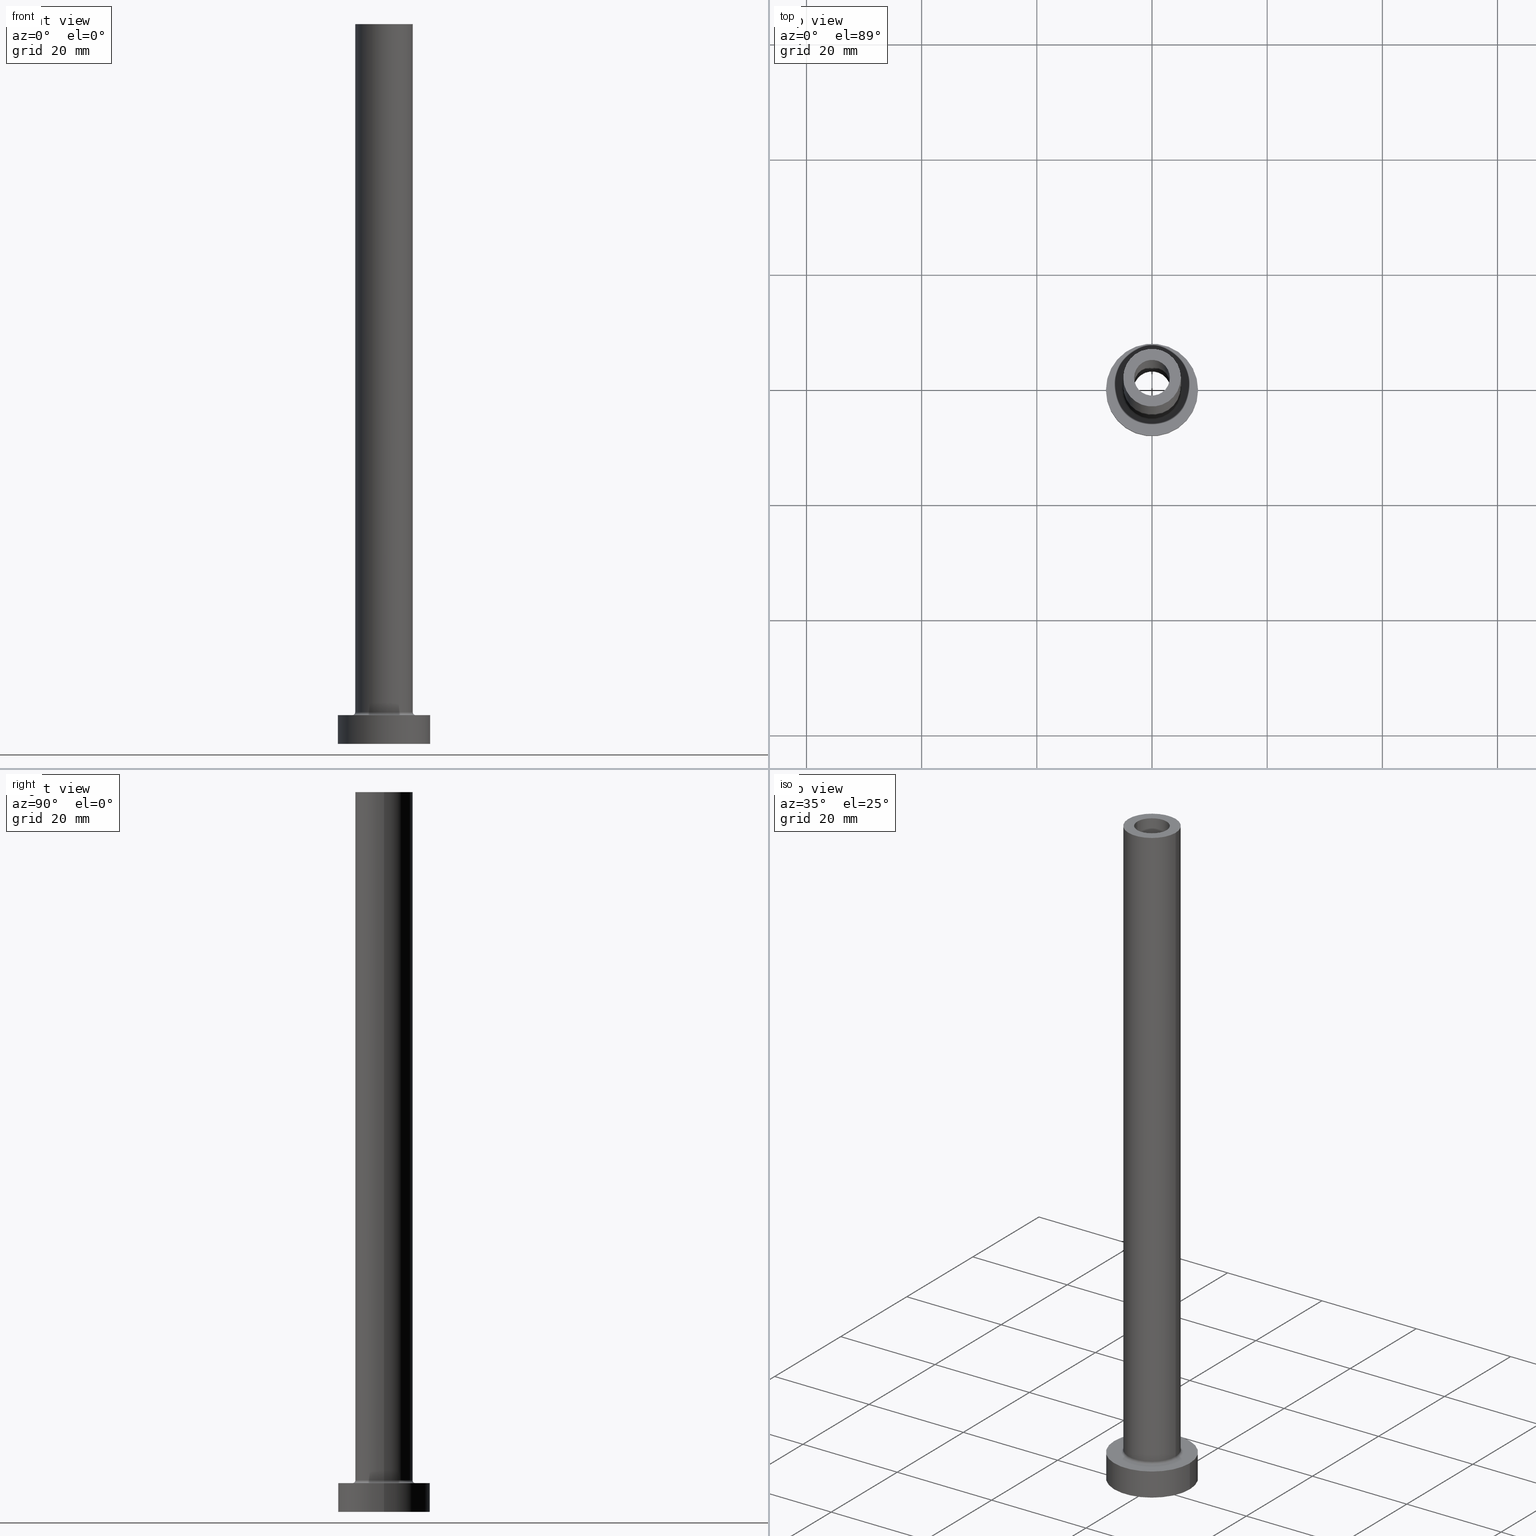
[diagram: canonical four-view strip — front | top / right | iso, engineering-drawing reading convention]
A machine part, canonical four-view strip (front | top / right | iso — engineering-drawing reading convention). The complete STEP part file that produces these views, byte-faithful:
ISO-10303-21;
HEADER;
FILE_DESCRIPTION (( 'STEP AP203' ),
    '1' );
FILE_NAME ('5564.STEP',
    '2023-02-13T09:12:51',
    ( '' ),
    ( '' ),
    'SwSTEP 2.0',
    'SolidWorks 2019',
    '' );
FILE_SCHEMA (( 'CONFIG_CONTROL_DESIGN' ));
ENDSEC;

DATA;
#1 = CARTESIAN_POINT ( 'NONE',  ( -8.000000000000000000, 0.000000000000000000, 0.000000000000000000 ) ) ;
#2 = VERTEX_POINT ( 'NONE', #134 ) ;
#3 = AXIS2_PLACEMENT_3D ( 'NONE', #340, #66, #133 ) ;
#4 = ADVANCED_FACE ( 'NONE', ( #203, #34 ), #162, .T. ) ;
#5 = EDGE_CURVE ( 'NONE', #293, #67, #461, .T. ) ;
#6 = COORDINATED_UNIVERSAL_TIME_OFFSET ( 1, 0, .AHEAD. ) ;
#7 = CARTESIAN_POINT ( 'NONE',  ( -5.000000000000000000, 0.000000000000000000, 125.0000000000000000 ) ) ;
#8 = APPROVAL_STATUS ( 'not_yet_approved' ) ;
#9 = DIRECTION ( 'NONE',  ( 1.000000000000000000, 0.000000000000000000, 0.000000000000000000 ) ) ;
#10 = ADVANCED_FACE ( 'NONE', ( #391 ), #78, .T. ) ;
#11 = DIRECTION ( 'NONE',  ( 0.000000000000000000, 0.000000000000000000, -1.000000000000000000 ) ) ;
#12 = AXIS2_PLACEMENT_3D ( 'NONE', #343, #372, #338 ) ;
#13 = APPROVAL_DATE_TIME ( #399, #137 ) ;
#14 = DIRECTION ( 'NONE',  ( 1.000000000000000000, 0.000000000000000000, 0.000000000000000000 ) ) ;
#15 = FACE_BOUND ( 'NONE', #331, .T. ) ;
#16 = ORIENTED_EDGE ( 'NONE', *, *, #246, .F. ) ;
#17 = AXIS2_PLACEMENT_3D ( 'NONE', #252, #248, #52 ) ;
#18 = DIRECTION ( 'NONE',  ( 0.000000000000000000, 0.000000000000000000, 1.000000000000000000 ) ) ;
#19 = ORIENTED_EDGE ( 'NONE', *, *, #253, .F. ) ;
#20 = APPROVAL ( #182, 'NEUR�EN�' ) ;
#21 = VECTOR ( 'NONE', #313, 1000.000000000000000 ) ;
#22 = APPLICATION_CONTEXT ( 'configuration controlled 3d designs of mechanical parts and assemblies' ) ;
#23 = CARTESIAN_POINT ( 'NONE',  ( 0.000000000000000000, 0.000000000000000000, 0.000000000000000000 ) ) ;
#24 = VERTEX_POINT ( 'NONE', #267 ) ;
#25 = CARTESIAN_POINT ( 'NONE',  ( 5.000000000000000000, 6.123233995736766282E-16, 5.500000000000005329 ) ) ;
#26 = VERTEX_POINT ( 'NONE', #98 ) ;
#27 = DIRECTION ( 'NONE',  ( 0.000000000000000000, 0.000000000000000000, 1.000000000000000000 ) ) ;
#28 = CC_DESIGN_PERSON_AND_ORGANIZATION_ASSIGNMENT ( #320, #291, ( #363 ) ) ;
#29 = EDGE_LOOP ( 'NONE', ( #368, #328, #224, #145 ) ) ;
#30 = AXIS2_PLACEMENT_3D ( 'NONE', #192, #335, #90 ) ;
#31 = LINE ( 'NONE', #166, #104 ) ;
#32 = EDGE_LOOP ( 'NONE', ( #255, #211, #382, #112 ) ) ;
#33 = DIRECTION ( 'NONE',  ( 0.000000000000000000, 0.000000000000000000, -1.000000000000000000 ) ) ;
#34 = FACE_OUTER_BOUND ( 'NONE', #405, .T. ) ;
#35 = VECTOR ( 'NONE', #11, 1000.000000000000000 ) ;
#36 = AXIS2_PLACEMENT_3D ( 'NONE', #289, #432, #14 ) ;
#37 = AXIS2_PLACEMENT_3D ( 'NONE', #409, #128, #58 ) ;
#38 = DIRECTION ( 'NONE',  ( 0.000000000000000000, 0.000000000000000000, 1.000000000000000000 ) ) ;
#39 = CARTESIAN_POINT ( 'NONE',  ( -5.000000000000000000, 0.000000000000000000, 125.0000000000000000 ) ) ;
#40 = PRODUCT_RELATED_PRODUCT_CATEGORY ( 'detail', '', ( #179 ) ) ;
#41 = ORIENTED_EDGE ( 'NONE', *, *, #365, .F. ) ;
#42 = ADVANCED_FACE ( 'NONE', ( #233 ), #216, .F. ) ;
#43 = CARTESIAN_POINT ( 'NONE',  ( 3.250000000000000444, 3.980102097228898231E-16, 89.19238815542512100 ) ) ;
#44 = CC_DESIGN_APPROVAL ( #20, ( #237 ) ) ;
#45 = CARTESIAN_POINT ( 'NONE',  ( 0.000000000000000000, 0.000000000000000000, 5.500000000000005329 ) ) ;
#46 = PERSON_AND_ORGANIZATION_ROLE ( 'design_supplier' ) ;
#47 = DIRECTION ( 'NONE',  ( 0.000000000000000000, 0.000000000000000000, 1.000000000000000000 ) ) ;
#48 = APPROVAL_ROLE ( '' ) ;
#49 = CARTESIAN_POINT ( 'NONE',  ( 5.500000000000000000, 0.000000000000000000, 5.000000000000002665 ) ) ;
#50 = CIRCLE ( 'NONE', #351, 3.250000000000000444 ) ;
#51 = ORIENTED_EDGE ( 'NONE', *, *, #353, .F. ) ;
#52 = DIRECTION ( 'NONE',  ( -1.000000000000000000, 1.224646799147351482E-16, 0.000000000000000000 ) ) ;
#53 = ORIENTED_EDGE ( 'NONE', *, *, #418, .F. ) ;
#54 = CARTESIAN_POINT ( 'NONE',  ( -3.250000000000000444, 0.000000000000000000, 0.000000000000000000 ) ) ;
#55 = EDGE_CURVE ( 'NONE', #158, #2, #355, .T. ) ;
#56 = ORIENTED_EDGE ( 'NONE', *, *, #277, .F. ) ;
#57 = AXIS2_PLACEMENT_3D ( 'NONE', #394, #178, #366 ) ;
#58 = DIRECTION ( 'NONE',  ( 1.000000000000000000, 0.000000000000000000, 0.000000000000000000 ) ) ;
#59 = AXIS2_PLACEMENT_3D ( 'NONE', #222, #440, #150 ) ;
#60 = CIRCLE ( 'NONE', #30, 3.250000000000000444 ) ;
#61 = LINE ( 'NONE', #190, #149 ) ;
#62 = EDGE_LOOP ( 'NONE', ( #317, #127, #305, #196 ) ) ;
#63 = EDGE_CURVE ( 'NONE', #231, #84, #272, .T. ) ;
#64 = FACE_OUTER_BOUND ( 'NONE', #356, .T. ) ;
#65 = ORIENTED_EDGE ( 'NONE', *, *, #55, .T. ) ;
#66 = DIRECTION ( 'NONE',  ( 0.000000000000000000, 0.000000000000000000, 1.000000000000000000 ) ) ;
#67 = VERTEX_POINT ( 'NONE', #49 ) ;
#68 = VECTOR ( 'NONE', #197, 1000.000000000000000 ) ;
#69 = DIRECTION ( 'NONE',  ( 1.000000000000000000, 0.000000000000000000, 0.000000000000000000 ) ) ;
#70 = EDGE_LOOP ( 'NONE', ( #345, #103 ) ) ;
#71 = DIRECTION ( 'NONE',  ( 0.000000000000000000, 0.000000000000000000, 1.000000000000000000 ) ) ;
#72 = ADVANCED_FACE ( 'NONE', ( #214 ), #83, .T. ) ;
#73 = ORIENTED_EDGE ( 'NONE', *, *, #93, .T. ) ;
#74 = CIRCLE ( 'NONE', #352, 3.100000000000000089 ) ;
#75 = DIRECTION ( 'NONE',  ( 1.000000000000000000, 0.000000000000000000, -0.000000000000000000 ) ) ;
#76 = ADVANCED_FACE ( 'NONE', ( #292 ), #88, .F. ) ;
#77 = APPROVAL_STATUS ( 'not_yet_approved' ) ;
#78 = CYLINDRICAL_SURFACE ( 'NONE', #325, 8.000000000000000000 ) ;
#79 = CARTESIAN_POINT ( 'NONE',  ( -3.100000000000000089, 0.000000000000000000, 80.00000000000000000 ) ) ;
#80 = AXIS2_PLACEMENT_3D ( 'NONE', #240, #38, #243 ) ;
#81 = PERSON_AND_ORGANIZATION ( #444, #396 ) ;
#82 = DIRECTION ( 'NONE',  ( -1.000000000000000000, 0.000000000000000000, 0.000000000000000000 ) ) ;
#83 = CYLINDRICAL_SURFACE ( 'NONE', #57, 8.000000000000000000 ) ;
#84 = VERTEX_POINT ( 'NONE', #431 ) ;
#85 = DIRECTION ( 'NONE',  ( 1.000000000000000000, 0.000000000000000000, 0.000000000000000000 ) ) ;
#86 = EDGE_LOOP ( 'NONE', ( #176, #423 ) ) ;
#87 = ADVANCED_FACE ( 'NONE', ( #398 ), #123, .T. ) ;
#88 = CYLINDRICAL_SURFACE ( 'NONE', #114, 3.100000000000000089 ) ;
#89 = EDGE_LOOP ( 'NONE', ( #446, #16, #416, #342 ) ) ;
#90 = DIRECTION ( 'NONE',  ( 1.000000000000000000, 0.000000000000000000, 0.000000000000000000 ) ) ;
#91 = VERTEX_POINT ( 'NONE', #79 ) ;
#92 = CYLINDRICAL_SURFACE ( 'NONE', #296, 3.100000000000000089 ) ;
#93 = EDGE_CURVE ( 'NONE', #231, #24, #225, .T. ) ;
#94 = CIRCLE ( 'NONE', #207, 8.000000000000000000 ) ;
#95 = ORIENTED_EDGE ( 'NONE', *, *, #301, .F. ) ;
#96 = AXIS2_PLACEMENT_3D ( 'NONE', #101, #18, #408 ) ;
#97 = DIRECTION ( 'NONE',  ( 1.000000000000000000, 0.000000000000000000, 0.000000000000000000 ) ) ;
#98 = CARTESIAN_POINT ( 'NONE',  ( 3.100000000000000089, 3.796405077356793932E-16, 125.0000000000000000 ) ) ;
#99 = CARTESIAN_POINT ( 'NONE',  ( 0.000000000000000000, 0.000000000000000000, 80.00000000000000000 ) ) ;
#100 = CARTESIAN_POINT ( 'NONE',  ( 5.500000000000000000, 0.000000000000000000, 5.500000000000005329 ) ) ;
#101 = CARTESIAN_POINT ( 'NONE',  ( 0.000000000000000000, 0.000000000000000000, 80.00000000000000000 ) ) ;
#102 = AXIS2_PLACEMENT_3D ( 'NONE', #361, #120, #117 ) ;
#103 = ORIENTED_EDGE ( 'NONE', *, *, #337, .F. ) ;
#104 = VECTOR ( 'NONE', #276, 1000.000000000000000 ) ;
#105 = LINE ( 'NONE', #39, #406 ) ;
#106 = EDGE_LOOP ( 'NONE', ( #125, #362, #438, #375 ) ) ;
#107 = CARTESIAN_POINT ( 'NONE',  ( 3.100000000000000089, 3.796405077356793932E-16, 80.00000000000000000 ) ) ;
#108 = FACE_BOUND ( 'NONE', #136, .T. ) ;
#109 = AXIS2_PLACEMENT_3D ( 'NONE', #170, #269, #309 ) ;
#110 = CC_DESIGN_PERSON_AND_ORGANIZATION_ASSIGNMENT ( #180, #326, ( #227 ) ) ;
#111 = SECURITY_CLASSIFICATION_LEVEL ( 'unclassified' ) ;
#112 = ORIENTED_EDGE ( 'NONE', *, *, #379, .F. ) ;
#113 = CARTESIAN_POINT ( 'NONE',  ( 5.000000000000000000, 6.123233995736766282E-16, 125.0000000000000000 ) ) ;
#114 = AXIS2_PLACEMENT_3D ( 'NONE', #323, #321, #82 ) ;
#115 = CALENDAR_DATE ( 2023, 13, 2 ) ;
#116 = CIRCLE ( 'NONE', #171, 8.000000000000000000 ) ;
#117 = DIRECTION ( 'NONE',  ( -1.000000000000000000, 0.000000000000000000, 0.000000000000000000 ) ) ;
#118 = CIRCLE ( 'NONE', #250, 8.000000000000000000 ) ;
#119 = COORDINATED_UNIVERSAL_TIME_OFFSET ( 1, 0, .AHEAD. ) ;
#120 = DIRECTION ( 'NONE',  ( 0.000000000000000000, 0.000000000000000000, -1.000000000000000000 ) ) ;
#121 = DIRECTION ( 'NONE',  ( 0.000000000000000000, 0.000000000000000000, 1.000000000000000000 ) ) ;
#122 = CC_DESIGN_DATE_AND_TIME_ASSIGNMENT ( #392, #403, ( #237 ) ) ;
#123 = CYLINDRICAL_SURFACE ( 'NONE', #349, 5.000000000000000000 ) ;
#124 = AXIS2_PLACEMENT_3D ( 'NONE', #290, #404, #85 ) ;
#125 = ORIENTED_EDGE ( 'NONE', *, *, #185, .F. ) ;
#126 = CARTESIAN_POINT ( 'NONE',  ( -8.000000000000000000, 0.000000000000000000, 5.000000000000000000 ) ) ;
#127 = ORIENTED_EDGE ( 'NONE', *, *, #294, .T. ) ;
#128 = DIRECTION ( 'NONE',  ( 0.000000000000000000, 0.000000000000000000, 1.000000000000000000 ) ) ;
#129 = VERTEX_POINT ( 'NONE', #113 ) ;
#130 = FACE_BOUND ( 'NONE', #264, .T. ) ;
#131 = AXIS2_PLACEMENT_3D ( 'NONE', #199, #450, #270 ) ;
#132 = DIRECTION ( 'NONE',  ( -1.000000000000000000, 0.000000000000000000, 0.000000000000000000 ) ) ;
#133 = DIRECTION ( 'NONE',  ( 1.000000000000000000, 0.000000000000000000, -0.000000000000000000 ) ) ;
#134 = CARTESIAN_POINT ( 'NONE',  ( -5.500000000000000000, 6.735557395310442023E-16, 5.000000000000002665 ) ) ;
#135 = CARTESIAN_POINT ( 'NONE',  ( 0.000000000000000000, 0.000000000000000000, 0.000000000000000000 ) ) ;
#136 = EDGE_LOOP ( 'NONE', ( #19, #51 ) ) ;
#137 = APPROVAL ( #8, 'NEUR�EN�' ) ;
#138 = DATE_AND_TIME ( #316, #230 ) ;
#139 = VERTEX_POINT ( 'NONE', #7 ) ;
#140 = DIRECTION ( 'NONE',  ( 0.000000000000000000, 0.000000000000000000, 1.000000000000000000 ) ) ;
#141 = ADVANCED_FACE ( 'NONE', ( #358 ), #410, .F. ) ;
#142 = FACE_OUTER_BOUND ( 'NONE', #62, .T. ) ;
#143 = LOCAL_TIME ( 10, 12, 51.00000000000000000, #285 ) ;
#144 = PLANE ( 'NONE',  #434 ) ;
#145 = ORIENTED_EDGE ( 'NONE', *, *, #234, .F. ) ;
#146 = CARTESIAN_POINT ( 'NONE',  ( 0.000000000000000000, 0.000000000000000000, 5.000000000000000000 ) ) ;
#147 = DATE_TIME_ROLE ( 'creation_date' ) ;
#148 = CIRCLE ( 'NONE', #206, 5.000000000000000000 ) ;
#149 = VECTOR ( 'NONE', #445, 1000.000000000000000 ) ;
#150 = DIRECTION ( 'NONE',  ( 1.000000000000000000, 0.000000000000000000, 0.000000000000000000 ) ) ;
#151 = CALENDAR_DATE ( 2023, 13, 2 ) ;
#152 = EDGE_CURVE ( 'NONE', #411, #275, #249, .T. ) ;
#153 = DATE_AND_TIME ( #115, #441 ) ;
#154 = DIRECTION ( 'NONE',  ( 1.000000000000000000, 0.000000000000000000, 0.000000000000000000 ) ) ;
#155 = EDGE_LOOP ( 'NONE', ( #299, #73, #188, #53 ) ) ;
#156 = CARTESIAN_POINT ( 'NONE',  ( 8.000000000000000000, 9.797174393178825657E-16, 0.000000000000000000 ) ) ;
#157 =( GEOMETRIC_REPRESENTATION_CONTEXT ( 3 ) GLOBAL_UNCERTAINTY_ASSIGNED_CONTEXT ( ( #387 ) ) GLOBAL_UNIT_ASSIGNED_CONTEXT ( ( #175, #204, #278 ) ) REPRESENTATION_CONTEXT ( 'NONE', 'WORKASPACE' ) );
#158 = VERTEX_POINT ( 'NONE', #259 ) ;
#159 = FACE_OUTER_BOUND ( 'NONE', #155, .T. ) ;
#160 = VERTEX_POINT ( 'NONE', #407 ) ;
#161 = DIRECTION ( 'NONE',  ( 1.000000000000000000, 0.000000000000000000, 0.000000000000000000 ) ) ;
#162 = PLANE ( 'NONE',  #109 ) ;
#163 = DIRECTION ( 'NONE',  ( 0.000000000000000000, 0.000000000000000000, -1.000000000000000000 ) ) ;
#164 = APPROVAL_PERSON_ORGANIZATION ( #81, #137, #48 ) ;
#165 = ORIENTED_EDGE ( 'NONE', *, *, #379, .T. ) ;
#166 = CARTESIAN_POINT ( 'NONE',  ( -3.100000000000000089, 0.000000000000000000, 125.0000000000000000 ) ) ;
#167 = EDGE_CURVE ( 'NONE', #429, #347, #116, .T. ) ;
#168 = ORIENTED_EDGE ( 'NONE', *, *, #5, .F. ) ;
#169 = EDGE_CURVE ( 'NONE', #452, #91, #433, .T. ) ;
#170 = CARTESIAN_POINT ( 'NONE',  ( 0.000000000000000000, 0.000000000000000000, 5.000000000000000000 ) ) ;
#171 = AXIS2_PLACEMENT_3D ( 'NONE', #146, #436, #286 ) ;
#172 = AXIS2_PLACEMENT_3D ( 'NONE', #413, #419, #97 ) ;
#173 = EDGE_CURVE ( 'NONE', #293, #158, #148, .T. ) ;
#174 = LINE ( 'NONE', #348, #21 ) ;
#175 =( LENGTH_UNIT ( ) NAMED_UNIT ( * ) SI_UNIT ( .MILLI., .METRE. ) );
#176 = ORIENTED_EDGE ( 'NONE', *, *, #437, .F. ) ;
#177 = CC_DESIGN_APPROVAL ( #393, ( #227 ) ) ;
#178 = DIRECTION ( 'NONE',  ( -0.000000000000000000, -0.000000000000000000, -1.000000000000000000 ) ) ;
#179 = PRODUCT ( '5564', '5564', '', ( #314 ) ) ;
#180 = PERSON_AND_ORGANIZATION ( #444, #396 ) ;
#181 = CARTESIAN_POINT ( 'NONE',  ( 0.000000000000000000, 0.000000000000000000, 80.00000000000000000 ) ) ;
#182 = APPROVAL_STATUS ( 'not_yet_approved' ) ;
#183 = DIRECTION ( 'NONE',  ( -0.000000000000000000, -0.000000000000000000, -1.000000000000000000 ) ) ;
#184 = PERSON_AND_ORGANIZATION_ROLE ( 'classification_officer' ) ;
#185 = EDGE_CURVE ( 'NONE', #347, #275, #254, .T. ) ;
#186 = CIRCLE ( 'NONE', #12, 5.500000000000000000 ) ;
#187 = CARTESIAN_POINT ( 'NONE',  ( 0.000000000000000000, 0.000000000000000000, 125.0000000000000000 ) ) ;
#188 = ORIENTED_EDGE ( 'NONE', *, *, #353, .T. ) ;
#189 = DIRECTION ( 'NONE',  ( 1.000000000000000000, 0.000000000000000000, 0.000000000000000000 ) ) ;
#190 = CARTESIAN_POINT ( 'NONE',  ( 5.000000000000000000, 6.123233995736766282E-16, 125.0000000000000000 ) ) ;
#191 = ORIENTED_EDGE ( 'NONE', *, *, #386, .F. ) ;
#192 = CARTESIAN_POINT ( 'NONE',  ( 0.000000000000000000, 0.000000000000000000, 0.000000000000000000 ) ) ;
#193 = APPROVAL_PERSON_ORGANIZATION ( #245, #393, #208 ) ;
#194 = ORIENTED_EDGE ( 'NONE', *, *, #212, .T. ) ;
#195 = DIRECTION ( 'NONE',  ( 1.000000000000000000, 0.000000000000000000, 0.000000000000000000 ) ) ;
#196 = ORIENTED_EDGE ( 'NONE', *, *, #381, .F. ) ;
#197 = DIRECTION ( 'NONE',  ( -0.000000000000000000, -0.000000000000000000, -1.000000000000000000 ) ) ;
#198 = ORIENTED_EDGE ( 'NONE', *, *, #246, .T. ) ;
#199 = CARTESIAN_POINT ( 'NONE',  ( 0.000000000000000000, 0.000000000000000000, 89.19238815542512100 ) ) ;
#200 = ADVANCED_FACE ( 'NONE', ( #329 ), #312, .F. ) ;
#201 = CIRCLE ( 'NONE', #124, 5.500000000000000000 ) ;
#202 = EDGE_LOOP ( 'NONE', ( #420, #339, #236, #41 ) ) ;
#203 = FACE_BOUND ( 'NONE', #228, .T. ) ;
#204 =( NAMED_UNIT ( * ) PLANE_ANGLE_UNIT ( ) SI_UNIT ( $, .RADIAN. ) );
#205 = CARTESIAN_POINT ( 'NONE',  ( 0.000000000000000000, 0.000000000000000000, 0.000000000000000000 ) ) ;
#206 = AXIS2_PLACEMENT_3D ( 'NONE', #360, #47, #189 ) ;
#207 = AXIS2_PLACEMENT_3D ( 'NONE', #226, #262, #161 ) ;
#208 = APPROVAL_ROLE ( '' ) ;
#209 = EDGE_LOOP ( 'NONE', ( #307, #370, #220, #283 ) ) ;
#210 = CC_DESIGN_DATE_AND_TIME_ASSIGNMENT ( #153, #147, ( #227 ) ) ;
#211 = ORIENTED_EDGE ( 'NONE', *, *, #386, .T. ) ;
#212 = EDGE_CURVE ( 'NONE', #67, #2, #201, .T. ) ;
#213 = AXIS2_PLACEMENT_3D ( 'NONE', #297, #27, #332 ) ;
#214 = FACE_OUTER_BOUND ( 'NONE', #106, .T. ) ;
#215 = PERSON_AND_ORGANIZATION ( #444, #396 ) ;
#216 = CYLINDRICAL_SURFACE ( 'NONE', #102, 3.250000000000000444 ) ;
#217 = ADVANCED_FACE ( 'NONE', ( #15, #64 ), #265, .T. ) ;
#218 = APPROVAL_DATE_TIME ( #435, #20 ) ;
#219 = DIRECTION ( 'NONE',  ( -0.000000000000000000, -0.000000000000000000, -1.000000000000000000 ) ) ;
#220 = ORIENTED_EDGE ( 'NONE', *, *, #418, .T. ) ;
#221 = CC_DESIGN_APPROVAL ( #137, ( #363 ) ) ;
#222 = CARTESIAN_POINT ( 'NONE',  ( 0.000000000000000000, 0.000000000000000000, 0.000000000000000000 ) ) ;
#223 = CC_DESIGN_SECURITY_CLASSIFICATION ( #237, ( #363 ) ) ;
#224 = ORIENTED_EDGE ( 'NONE', *, *, #337, .T. ) ;
#225 = LINE ( 'NONE', #43, #35 ) ;
#226 = CARTESIAN_POINT ( 'NONE',  ( 0.000000000000000000, 0.000000000000000000, 5.000000000000000000 ) ) ;
#227 = PRODUCT_DEFINITION ( 'NEZN�M�', '', #363, #319 ) ;
#228 = EDGE_LOOP ( 'NONE', ( #194, #260 ) ) ;
#229 = CYLINDRICAL_SURFACE ( 'NONE', #131, 3.250000000000000444 ) ;
#230 = LOCAL_TIME ( 10, 12, 51.00000000000000000, #354 ) ;
#231 = VERTEX_POINT ( 'NONE', #442 ) ;
#232 = FACE_OUTER_BOUND ( 'NONE', #257, .T. ) ;
#233 = FACE_OUTER_BOUND ( 'NONE', #209, .T. ) ;
#234 = EDGE_CURVE ( 'NONE', #429, #411, #415, .T. ) ;
#235 = DIRECTION ( 'NONE',  ( 0.000000000000000000, 0.000000000000000000, 1.000000000000000000 ) ) ;
#236 = ORIENTED_EDGE ( 'NONE', *, *, #5, .T. ) ;
#237 = SECURITY_CLASSIFICATION ( '', '', #111 ) ;
#238 = VERTEX_POINT ( 'NONE', #54 ) ;
#239 = MANIFOLD_SOLID_BREP ( 'Odebrat vysunut�m4', #302 ) ;
#240 = CARTESIAN_POINT ( 'NONE',  ( 0.000000000000000000, 0.000000000000000000, 80.00000000000000000 ) ) ;
#241 = ORIENTED_EDGE ( 'NONE', *, *, #169, .T. ) ;
#242 = APPLICATION_PROTOCOL_DEFINITION ( 'international standard', 'config_control_design', 1994, #384 ) ;
#243 = DIRECTION ( 'NONE',  ( 1.000000000000000000, 0.000000000000000000, 0.000000000000000000 ) ) ;
#244 = CIRCLE ( 'NONE', #318, 3.100000000000000089 ) ;
#245 = PERSON_AND_ORGANIZATION ( #444, #396 ) ;
#246 = EDGE_CURVE ( 'NONE', #139, #129, #412, .T. ) ;
#247 = DIRECTION ( 'NONE',  ( 0.000000000000000000, 0.000000000000000000, -1.000000000000000000 ) ) ;
#248 = DIRECTION ( 'NONE',  ( 1.224646799147353207E-16, 1.000000000000000000, -0.000000000000000000 ) ) ;
#249 = CIRCLE ( 'NONE', #59, 8.000000000000000000 ) ;
#250 = AXIS2_PLACEMENT_3D ( 'NONE', #23, #304, #263 ) ;
#251 = CALENDAR_DATE ( 2023, 13, 2 ) ;
#252 = CARTESIAN_POINT ( 'NONE',  ( -5.500000000000000000, 6.735557395310442023E-16, 5.500000000000005329 ) ) ;
#253 = EDGE_CURVE ( 'NONE', #238, #24, #60, .T. ) ;
#254 = LINE ( 'NONE', #400, #334 ) ;
#255 = ORIENTED_EDGE ( 'NONE', *, *, #430, .T. ) ;
#256 = DIRECTION ( 'NONE',  ( 1.000000000000000000, 0.000000000000000000, 0.000000000000000000 ) ) ;
#257 = EDGE_LOOP ( 'NONE', ( #191, #336, #165, #373 ) ) ;
#258 = CIRCLE ( 'NONE', #274, 3.100000000000000089 ) ;
#259 = CARTESIAN_POINT ( 'NONE',  ( -5.000000000000000000, 0.000000000000000000, 5.500000000000005329 ) ) ;
#260 = ORIENTED_EDGE ( 'NONE', *, *, #365, .T. ) ;
#261 = EDGE_CURVE ( 'NONE', #91, #452, #258, .T. ) ;
#262 = DIRECTION ( 'NONE',  ( 0.000000000000000000, 0.000000000000000000, 1.000000000000000000 ) ) ;
#263 = DIRECTION ( 'NONE',  ( 1.000000000000000000, 0.000000000000000000, 0.000000000000000000 ) ) ;
#264 = EDGE_LOOP ( 'NONE', ( #443, #241 ) ) ;
#265 = PLANE ( 'NONE',  #3 ) ;
#266 = CC_DESIGN_PERSON_AND_ORGANIZATION_ASSIGNMENT ( #426, #308, ( #179 ) ) ;
#267 = CARTESIAN_POINT ( 'NONE',  ( 3.250000000000000444, 3.980102097228898231E-16, 0.000000000000000000 ) ) ;
#268 = FACE_OUTER_BOUND ( 'NONE', #86, .T. ) ;
#269 = DIRECTION ( 'NONE',  ( 0.000000000000000000, 0.000000000000000000, 1.000000000000000000 ) ) ;
#270 = DIRECTION ( 'NONE',  ( -1.000000000000000000, 0.000000000000000000, 0.000000000000000000 ) ) ;
#271 = ORIENTED_EDGE ( 'NONE', *, *, #315, .T. ) ;
#272 = CIRCLE ( 'NONE', #333, 3.250000000000000444 ) ;
#273 = APPROVAL_DATE_TIME ( #138, #393 ) ;
#274 = AXIS2_PLACEMENT_3D ( 'NONE', #99, #306, #195 ) ;
#275 = VERTEX_POINT ( 'NONE', #156 ) ;
#276 = DIRECTION ( 'NONE',  ( 0.000000000000000000, 0.000000000000000000, -1.000000000000000000 ) ) ;
#277 = EDGE_CURVE ( 'NONE', #26, #160, #244, .T. ) ;
#278 =( NAMED_UNIT ( * ) SI_UNIT ( $, .STERADIAN. ) SOLID_ANGLE_UNIT ( ) );
#279 = CARTESIAN_POINT ( 'NONE',  ( 0.000000000000000000, 0.000000000000000000, 0.000000000000000000 ) ) ;
#280 = CC_DESIGN_PERSON_AND_ORGANIZATION_ASSIGNMENT ( #359, #184, ( #237 ) ) ;
#281 = LOCAL_TIME ( 10, 12, 51.00000000000000000, #6 ) ;
#282 = DIRECTION ( 'NONE',  ( -0.000000000000000000, -0.000000000000000000, -1.000000000000000000 ) ) ;
#283 = ORIENTED_EDGE ( 'NONE', *, *, #253, .T. ) ;
#284 = DIRECTION ( 'NONE',  ( 0.000000000000000000, 0.000000000000000000, 1.000000000000000000 ) ) ;
#285 = COORDINATED_UNIVERSAL_TIME_OFFSET ( 1, 0, .AHEAD. ) ;
#286 = DIRECTION ( 'NONE',  ( 1.000000000000000000, 0.000000000000000000, 0.000000000000000000 ) ) ;
#287 = VECTOR ( 'NONE', #33, 1000.000000000000000 ) ;
#288 = PERSON_AND_ORGANIZATION ( #444, #396 ) ;
#289 = CARTESIAN_POINT ( 'NONE',  ( 0.000000000000000000, 0.000000000000000000, 80.00000000000000000 ) ) ;
#290 = CARTESIAN_POINT ( 'NONE',  ( 0.000000000000000000, 0.000000000000000000, 5.000000000000000000 ) ) ;
#291 = PERSON_AND_ORGANIZATION_ROLE ( 'creator' ) ;
#292 = FACE_OUTER_BOUND ( 'NONE', #32, .T. ) ;
#293 = VERTEX_POINT ( 'NONE', #25 ) ;
#294 = EDGE_CURVE ( 'NONE', #129, #293, #61, .T. ) ;
#295 = ADVANCED_FACE ( 'NONE', ( #130, #268 ), #453, .F. ) ;
#296 = AXIS2_PLACEMENT_3D ( 'NONE', #374, #163, #369 ) ;
#297 = CARTESIAN_POINT ( 'NONE',  ( 0.000000000000000000, 0.000000000000000000, 5.500000000000005329 ) ) ;
#298 = DIRECTION ( 'NONE',  ( -0.000000000000000000, -0.000000000000000000, -1.000000000000000000 ) ) ;
#299 = ORIENTED_EDGE ( 'NONE', *, *, #437, .T. ) ;
#300 = CARTESIAN_POINT ( 'NONE',  ( 0.000000000000000000, 0.000000000000000000, 125.0000000000000000 ) ) ;
#301 = EDGE_CURVE ( 'NONE', #158, #293, #380, .T. ) ;
#302 = CLOSED_SHELL ( 'NONE', ( #76, #346, #200, #402, #10, #72, #4, #417, #87, #217, #141, #42, #295, #330 ) ) ;
#303 = CARTESIAN_POINT ( 'NONE',  ( 0.000000000000000000, 0.000000000000000000, 5.000000000000000000 ) ) ;
#304 = DIRECTION ( 'NONE',  ( 0.000000000000000000, 0.000000000000000000, 1.000000000000000000 ) ) ;
#305 = ORIENTED_EDGE ( 'NONE', *, *, #173, .T. ) ;
#306 = DIRECTION ( 'NONE',  ( 0.000000000000000000, 0.000000000000000000, 1.000000000000000000 ) ) ;
#307 = ORIENTED_EDGE ( 'NONE', *, *, #93, .F. ) ;
#308 = PERSON_AND_ORGANIZATION_ROLE ( 'design_owner' ) ;
#309 = DIRECTION ( 'NONE',  ( 1.000000000000000000, 0.000000000000000000, -0.000000000000000000 ) ) ;
#310 = EDGE_CURVE ( 'NONE', #347, #429, #94, .T. ) ;
#311 = CARTESIAN_POINT ( 'NONE',  ( -8.000000000000000000, 0.000000000000000000, 5.000000000000000000 ) ) ;
#312 = TOROIDAL_SURFACE ( 'NONE', #458, 5.500000000000000000, 0.5000000000000000000 ) ;
#313 = DIRECTION ( 'NONE',  ( 0.000000000000000000, 0.000000000000000000, -1.000000000000000000 ) ) ;
#314 = MECHANICAL_CONTEXT ( 'NONE', #384, 'mechanical' ) ;
#315 = EDGE_CURVE ( 'NONE', #129, #139, #449, .T. ) ;
#316 = CALENDAR_DATE ( 2023, 13, 2 ) ;
#317 = ORIENTED_EDGE ( 'NONE', *, *, #315, .F. ) ;
#318 = AXIS2_PLACEMENT_3D ( 'NONE', #300, #235, #447 ) ;
#319 = DESIGN_CONTEXT ( 'detailed design', #22, 'design' ) ;
#320 = PERSON_AND_ORGANIZATION ( #444, #396 ) ;
#321 = DIRECTION ( 'NONE',  ( 0.000000000000000000, 0.000000000000000000, -1.000000000000000000 ) ) ;
#322 = APPROVAL_ROLE ( '' ) ;
#323 = CARTESIAN_POINT ( 'NONE',  ( 0.000000000000000000, 0.000000000000000000, 125.0000000000000000 ) ) ;
#324 = DIRECTION ( 'NONE',  ( -1.000000000000000000, 0.000000000000000000, 0.000000000000000000 ) ) ;
#325 = AXIS2_PLACEMENT_3D ( 'NONE', #303, #448, #132 ) ;
#326 = PERSON_AND_ORGANIZATION_ROLE ( 'creator' ) ;
#327 = DIRECTION ( 'NONE',  ( 0.000000000000000000, 0.000000000000000000, 1.000000000000000000 ) ) ;
#328 = ORIENTED_EDGE ( 'NONE', *, *, #185, .T. ) ;
#329 = FACE_OUTER_BOUND ( 'NONE', #385, .T. ) ;
#330 = ADVANCED_FACE ( 'NONE', ( #232 ), #92, .F. ) ;
#331 = EDGE_LOOP ( 'NONE', ( #456, #56 ) ) ;
#332 = DIRECTION ( 'NONE',  ( 1.000000000000000000, 0.000000000000000000, 0.000000000000000000 ) ) ;
#333 = AXIS2_PLACEMENT_3D ( 'NONE', #181, #284, #154 ) ;
#334 = VECTOR ( 'NONE', #219, 1000.000000000000000 ) ;
#335 = DIRECTION ( 'NONE',  ( -0.000000000000000000, -0.000000000000000000, -1.000000000000000000 ) ) ;
#336 = ORIENTED_EDGE ( 'NONE', *, *, #277, .T. ) ;
#337 = EDGE_CURVE ( 'NONE', #275, #411, #118, .T. ) ;
#338 = DIRECTION ( 'NONE',  ( 1.000000000000000000, 0.000000000000000000, 0.000000000000000000 ) ) ;
#339 = ORIENTED_EDGE ( 'NONE', *, *, #173, .F. ) ;
#340 = CARTESIAN_POINT ( 'NONE',  ( 0.000000000000000000, 0.000000000000000000, 125.0000000000000000 ) ) ;
#341 = AXIS2_PLACEMENT_3D ( 'NONE', #100, #414, #247 ) ;
#342 = ORIENTED_EDGE ( 'NONE', *, *, #301, .T. ) ;
#343 = CARTESIAN_POINT ( 'NONE',  ( 0.000000000000000000, 0.000000000000000000, 5.000000000000000000 ) ) ;
#344 = APPROVAL_PERSON_ORGANIZATION ( #288, #20, #322 ) ;
#345 = ORIENTED_EDGE ( 'NONE', *, *, #152, .F. ) ;
#346 = ADVANCED_FACE ( 'NONE', ( #159 ), #229, .F. ) ;
#347 = VERTEX_POINT ( 'NONE', #367 ) ;
#348 = CARTESIAN_POINT ( 'NONE',  ( 3.100000000000000089, 3.796405077356793932E-16, 125.0000000000000000 ) ) ;
#349 = AXIS2_PLACEMENT_3D ( 'NONE', #187, #183, #324 ) ;
#350 = DIRECTION ( 'NONE',  ( 0.000000000000000000, 0.000000000000000000, 1.000000000000000000 ) ) ;
#351 = AXIS2_PLACEMENT_3D ( 'NONE', #135, #298, #376 ) ;
#352 = AXIS2_PLACEMENT_3D ( 'NONE', #424, #140, #383 ) ;
#353 = EDGE_CURVE ( 'NONE', #24, #238, #50, .T. ) ;
#354 = COORDINATED_UNIVERSAL_TIME_OFFSET ( 1, 0, .AHEAD. ) ;
#355 = CIRCLE ( 'NONE', #17, 0.5000000000000004441 ) ;
#356 = EDGE_LOOP ( 'NONE', ( #198, #271 ) ) ;
#357 = CIRCLE ( 'NONE', #80, 3.250000000000000444 ) ;
#358 = FACE_OUTER_BOUND ( 'NONE', #202, .T. ) ;
#359 = PERSON_AND_ORGANIZATION ( #444, #396 ) ;
#360 = CARTESIAN_POINT ( 'NONE',  ( 0.000000000000000000, 0.000000000000000000, 5.500000000000005329 ) ) ;
#361 = CARTESIAN_POINT ( 'NONE',  ( 0.000000000000000000, 0.000000000000000000, 89.19238815542512100 ) ) ;
#362 = ORIENTED_EDGE ( 'NONE', *, *, #167, .F. ) ;
#363 = PRODUCT_DEFINITION_FORMATION_WITH_SPECIFIED_SOURCE ( 'LIBOVOLN�', '', #179, .NOT_KNOWN. ) ;
#364 = COORDINATED_UNIVERSAL_TIME_OFFSET ( 1, 0, .AHEAD. ) ;
#365 = EDGE_CURVE ( 'NONE', #2, #67, #186, .T. ) ;
#366 = DIRECTION ( 'NONE',  ( -1.000000000000000000, 0.000000000000000000, 0.000000000000000000 ) ) ;
#367 = CARTESIAN_POINT ( 'NONE',  ( 8.000000000000000000, 9.797174393178825657E-16, 5.000000000000000000 ) ) ;
#368 = ORIENTED_EDGE ( 'NONE', *, *, #310, .F. ) ;
#369 = DIRECTION ( 'NONE',  ( -1.000000000000000000, 0.000000000000000000, 0.000000000000000000 ) ) ;
#370 = ORIENTED_EDGE ( 'NONE', *, *, #63, .T. ) ;
#371 = AXIS2_PLACEMENT_3D ( 'NONE', #378, #425, #457 ) ;
#372 = DIRECTION ( 'NONE',  ( -0.000000000000000000, -0.000000000000000000, -1.000000000000000000 ) ) ;
#373 = ORIENTED_EDGE ( 'NONE', *, *, #169, .F. ) ;
#374 = CARTESIAN_POINT ( 'NONE',  ( 0.000000000000000000, 0.000000000000000000, 125.0000000000000000 ) ) ;
#375 = ORIENTED_EDGE ( 'NONE', *, *, #152, .T. ) ;
#376 = DIRECTION ( 'NONE',  ( 1.000000000000000000, 0.000000000000000000, 0.000000000000000000 ) ) ;
#377 = ORIENTED_EDGE ( 'NONE', *, *, #212, .F. ) ;
#378 = CARTESIAN_POINT ( 'NONE',  ( 0.000000000000000000, 0.000000000000000000, 125.0000000000000000 ) ) ;
#379 = EDGE_CURVE ( 'NONE', #160, #91, #31, .T. ) ;
#380 = CIRCLE ( 'NONE', #213, 5.000000000000000000 ) ;
#381 = EDGE_CURVE ( 'NONE', #139, #158, #105, .T. ) ;
#382 = ORIENTED_EDGE ( 'NONE', *, *, #261, .F. ) ;
#383 = DIRECTION ( 'NONE',  ( 1.000000000000000000, 0.000000000000000000, 0.000000000000000000 ) ) ;
#384 = APPLICATION_CONTEXT ( 'configuration controlled 3d designs of mechanical parts and assemblies' ) ;
#385 = EDGE_LOOP ( 'NONE', ( #95, #65, #377, #168 ) ) ;
#386 = EDGE_CURVE ( 'NONE', #26, #452, #174, .T. ) ;
#387 = UNCERTAINTY_MEASURE_WITH_UNIT (LENGTH_MEASURE( 1.000000000000000082E-05 ), #175, 'distance_accuracy_value', 'NONE');
#388 = CYLINDRICAL_SURFACE ( 'NONE', #371, 5.000000000000000000 ) ;
#389 = CALENDAR_DATE ( 2023, 13, 2 ) ;
#390 = ADVANCED_BREP_SHAPE_REPRESENTATION ( '5564', ( #239, #422 ), #157 ) ;
#391 = FACE_OUTER_BOUND ( 'NONE', #29, .T. ) ;
#392 = DATE_AND_TIME ( #251, #281 ) ;
#393 = APPROVAL ( #77, 'NEUR�EN�' ) ;
#394 = CARTESIAN_POINT ( 'NONE',  ( 0.000000000000000000, 0.000000000000000000, 5.000000000000000000 ) ) ;
#395 = AXIS2_PLACEMENT_3D ( 'NONE', #45, #327, #9 ) ;
#396 = ORGANIZATION ( 'NEUR�EN�', 'NEUR�EN�', '' ) ;
#397 = SHAPE_DEFINITION_REPRESENTATION ( #459, #390 ) ;
#398 = FACE_OUTER_BOUND ( 'NONE', #89, .T. ) ;
#399 = DATE_AND_TIME ( #389, #427 ) ;
#400 = CARTESIAN_POINT ( 'NONE',  ( 8.000000000000000000, 9.797174393178825657E-16, 5.000000000000000000 ) ) ;
#401 = ORIENTED_EDGE ( 'NONE', *, *, #310, .T. ) ;
#402 = ADVANCED_FACE ( 'NONE', ( #142 ), #388, .T. ) ;
#403 = DATE_TIME_ROLE ( 'classification_date' ) ;
#404 = DIRECTION ( 'NONE',  ( -0.000000000000000000, -0.000000000000000000, -1.000000000000000000 ) ) ;
#405 = EDGE_LOOP ( 'NONE', ( #454, #401 ) ) ;
#406 = VECTOR ( 'NONE', #282, 1000.000000000000000 ) ;
#407 = CARTESIAN_POINT ( 'NONE',  ( -3.100000000000000089, 0.000000000000000000, 125.0000000000000000 ) ) ;
#408 = DIRECTION ( 'NONE',  ( 1.000000000000000000, 0.000000000000000000, -0.000000000000000000 ) ) ;
#409 = CARTESIAN_POINT ( 'NONE',  ( 0.000000000000000000, 0.000000000000000000, 125.0000000000000000 ) ) ;
#410 = TOROIDAL_SURFACE ( 'NONE', #395, 5.500000000000000000, 0.5000000000000000000 ) ;
#411 = VERTEX_POINT ( 'NONE', #1 ) ;
#412 = CIRCLE ( 'NONE', #37, 5.000000000000000000 ) ;
#413 = CARTESIAN_POINT ( 'NONE',  ( 0.000000000000000000, 0.000000000000000000, 125.0000000000000000 ) ) ;
#414 = DIRECTION ( 'NONE',  ( 0.000000000000000000, -1.000000000000000000, 0.000000000000000000 ) ) ;
#415 = LINE ( 'NONE', #126, #68 ) ;
#416 = ORIENTED_EDGE ( 'NONE', *, *, #381, .T. ) ;
#417 = ADVANCED_FACE ( 'NONE', ( #108, #421 ), #144, .F. ) ;
#418 = EDGE_CURVE ( 'NONE', #84, #238, #460, .T. ) ;
#419 = DIRECTION ( 'NONE',  ( 0.000000000000000000, 0.000000000000000000, 1.000000000000000000 ) ) ;
#420 = ORIENTED_EDGE ( 'NONE', *, *, #55, .F. ) ;
#421 = FACE_OUTER_BOUND ( 'NONE', #70, .T. ) ;
#422 = AXIS2_PLACEMENT_3D ( 'NONE', #205, #350, #69 ) ;
#423 = ORIENTED_EDGE ( 'NONE', *, *, #63, .F. ) ;
#424 = CARTESIAN_POINT ( 'NONE',  ( 0.000000000000000000, 0.000000000000000000, 125.0000000000000000 ) ) ;
#425 = DIRECTION ( 'NONE',  ( -0.000000000000000000, -0.000000000000000000, -1.000000000000000000 ) ) ;
#426 = PERSON_AND_ORGANIZATION ( #444, #396 ) ;
#427 = LOCAL_TIME ( 10, 12, 51.00000000000000000, #119 ) ;
#428 = CARTESIAN_POINT ( 'NONE',  ( -3.250000000000000444, 0.000000000000000000, 89.19238815542512100 ) ) ;
#429 = VERTEX_POINT ( 'NONE', #311 ) ;
#430 = EDGE_CURVE ( 'NONE', #160, #26, #74, .T. ) ;
#431 = CARTESIAN_POINT ( 'NONE',  ( -3.250000000000000444, 0.000000000000000000, 80.00000000000000000 ) ) ;
#432 = DIRECTION ( 'NONE',  ( 0.000000000000000000, 0.000000000000000000, 1.000000000000000000 ) ) ;
#433 = CIRCLE ( 'NONE', #36, 3.100000000000000089 ) ;
#434 = AXIS2_PLACEMENT_3D ( 'NONE', #279, #71, #75 ) ;
#435 = DATE_AND_TIME ( #151, #143 ) ;
#436 = DIRECTION ( 'NONE',  ( 0.000000000000000000, 0.000000000000000000, 1.000000000000000000 ) ) ;
#437 = EDGE_CURVE ( 'NONE', #84, #231, #357, .T. ) ;
#438 = ORIENTED_EDGE ( 'NONE', *, *, #234, .T. ) ;
#439 = CARTESIAN_POINT ( 'NONE',  ( 0.000000000000000000, 0.000000000000000000, 5.500000000000005329 ) ) ;
#440 = DIRECTION ( 'NONE',  ( 0.000000000000000000, 0.000000000000000000, 1.000000000000000000 ) ) ;
#441 = LOCAL_TIME ( 10, 12, 51.00000000000000000, #364 ) ;
#442 = CARTESIAN_POINT ( 'NONE',  ( 3.250000000000000444, 3.980102097228898231E-16, 80.00000000000000000 ) ) ;
#443 = ORIENTED_EDGE ( 'NONE', *, *, #261, .T. ) ;
#444 = PERSON ( 'NEUR�EN�', 'NEUR�EN�', 'NEUR�EN�', ('NEUR�EN�'), ('NEUR�EN�'), ('NEUR�EN�') ) ;
#445 = DIRECTION ( 'NONE',  ( -0.000000000000000000, -0.000000000000000000, -1.000000000000000000 ) ) ;
#446 = ORIENTED_EDGE ( 'NONE', *, *, #294, .F. ) ;
#447 = DIRECTION ( 'NONE',  ( 1.000000000000000000, 0.000000000000000000, 0.000000000000000000 ) ) ;
#448 = DIRECTION ( 'NONE',  ( -0.000000000000000000, -0.000000000000000000, -1.000000000000000000 ) ) ;
#449 = CIRCLE ( 'NONE', #172, 5.000000000000000000 ) ;
#450 = DIRECTION ( 'NONE',  ( 0.000000000000000000, 0.000000000000000000, -1.000000000000000000 ) ) ;
#451 = CC_DESIGN_PERSON_AND_ORGANIZATION_ASSIGNMENT ( #215, #46, ( #363 ) ) ;
#452 = VERTEX_POINT ( 'NONE', #107 ) ;
#453 = PLANE ( 'NONE',  #96 ) ;
#454 = ORIENTED_EDGE ( 'NONE', *, *, #167, .T. ) ;
#455 = APPLICATION_PROTOCOL_DEFINITION ( 'international standard', 'config_control_design', 1994, #22 ) ;
#456 = ORIENTED_EDGE ( 'NONE', *, *, #430, .F. ) ;
#457 = DIRECTION ( 'NONE',  ( -1.000000000000000000, 0.000000000000000000, 0.000000000000000000 ) ) ;
#458 = AXIS2_PLACEMENT_3D ( 'NONE', #439, #121, #256 ) ;
#459 = PRODUCT_DEFINITION_SHAPE ( 'NONE', 'NONE',  #227 ) ;
#460 = LINE ( 'NONE', #428, #287 ) ;
#461 = CIRCLE ( 'NONE', #341, 0.5000000000000004441 ) ;
ENDSEC;
END-ISO-10303-21;
